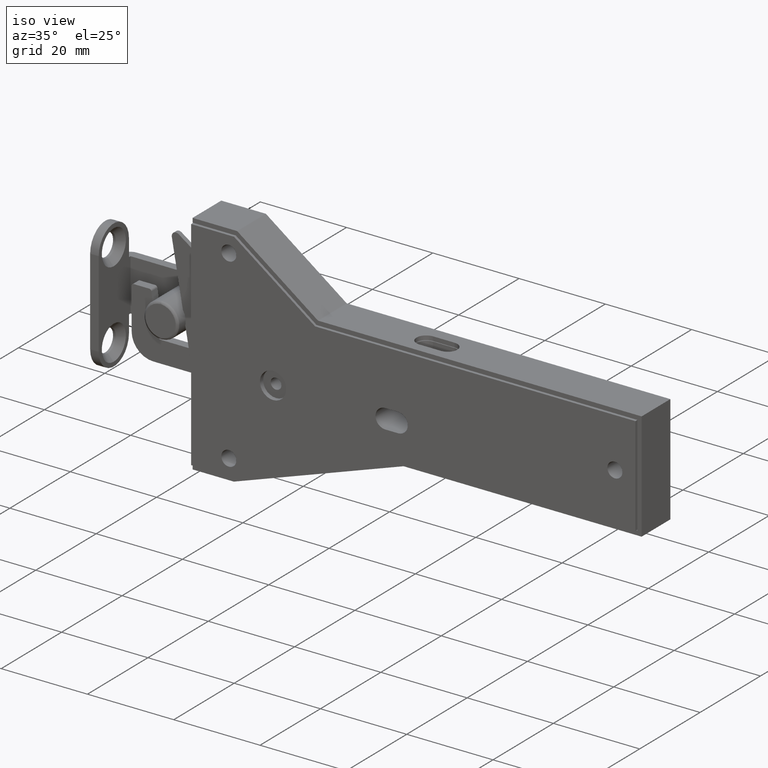
[diagram: clean part render]
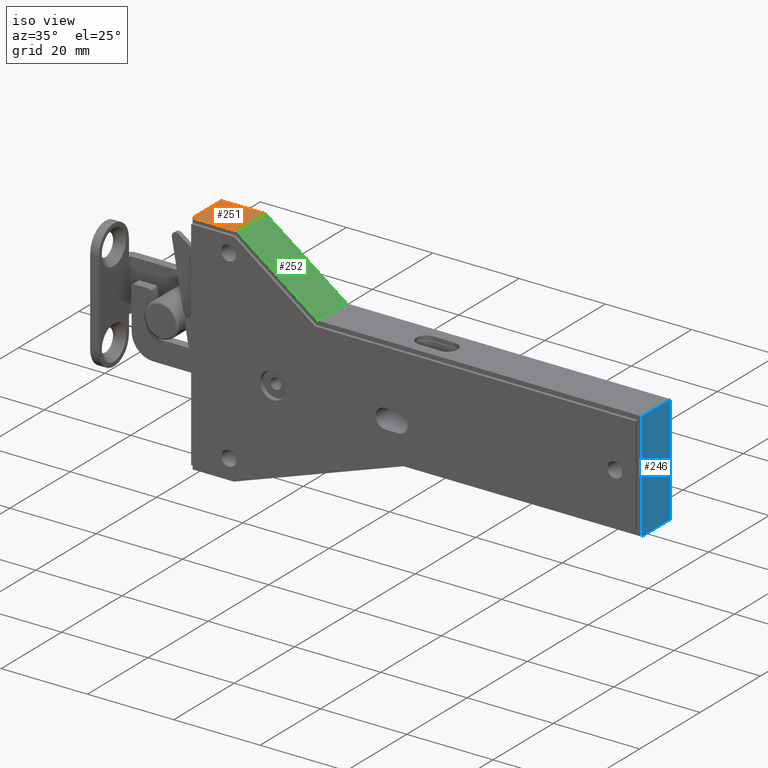
[diagram: same view with three faces highlighted in distinct colors, each labeled with its STEP entity id]
A machine part, iso view with three faces highlighted in distinct colors.
Their STEP definitions:

[orange] entity #251 — the highlighted planar face has unit normal (0, 0, 1).
#251=ADVANCED_FACE('',(#687),#686,.T.);
#686=PLANE('',#2325);
#687=FACE_OUTER_BOUND('',#2326,.T.);
#2322=CARTESIAN_POINT('',(-2.00338496318E+001,-1.04500000001E+001,2.98500000002E+001));
#2323=DIRECTION('',(2.31922971658E-012,-0.00000000000E+000,1.00000000000E+000));
#2324=DIRECTION('',(1.00000000000E+000,0.00000000000E+000,-2.31922971658E-012));
#2325=AXIS2_PLACEMENT_3D('',#2322,#2323,#2324);
#2326=EDGE_LOOP('',(#3312,#3313,#3314,#3315));
#3312=ORIENTED_EDGE('',*,*,#4121,.F.);
#3313=ORIENTED_EDGE('',*,*,#4204,.F.);
#3314=ORIENTED_EDGE('',*,*,#4205,.T.);
#3315=ORIENTED_EDGE('',*,*,#4202,.T.);
#4121=EDGE_CURVE('',#4722,#4729,#4730,.T.);
#4202=EDGE_CURVE('',#5271,#4729,#5272,.T.);
#4204=EDGE_CURVE('',#5284,#4722,#5285,.T.);
#4205=EDGE_CURVE('',#5284,#5271,#5291,.T.);
#4722=VERTEX_POINT('',#7840);
#4729=VERTEX_POINT('',#7844);
#4730=LINE('',#7845,#7846);
#5271=VERTEX_POINT('',#8167);
#5272=LINE('',#8168,#8169);
#5284=VERTEX_POINT('',#8174);
#5285=LINE('',#8175,#8176);
#5291=LINE('',#8178,#8179);
#7840=CARTESIAN_POINT('',(-8.66150368220E+000,-9.50000000005E+000,2.98500000002E+001));
#7844=CARTESIAN_POINT('',(-1.90000000000E+001,-9.50000000005E+000,2.98500000002E+001));
#7845=CARTESIAN_POINT('',(-8.66150368220E+000,-9.50000000005E+000,2.98500000002E+001));
#7846=VECTOR('',#7847,1.03384963178E+001);
#7847=DIRECTION('',(-1.00000000000E+000,0.00000000000E+000,2.31922166253E-012));
#8167=CARTESIAN_POINT('',(-1.90000000000E+001,2.01283434365E-010,2.98500000002E+001));
#8168=CARTESIAN_POINT('',(-1.90000000000E+001,2.01225702767E-010,2.98500000002E+001));
#8169=VECTOR('',#8170,9.50000000025E+000);
#8170=DIRECTION('',(0.00000000000E+000,-1.00000000000E+000,0.00000000000E+000));
#8174=CARTESIAN_POINT('',(-8.66150368220E+000,2.01283434365E-010,2.98500000002E+001));
#8175=CARTESIAN_POINT('',(-8.66150368220E+000,2.01225702767E-010,2.98500000002E+001));
#8176=VECTOR('',#8177,9.50000000025E+000);
#8177=DIRECTION('',(0.00000000000E+000,-1.00000000000E+000,0.00000000000E+000));
#8178=CARTESIAN_POINT('',(-8.66150368220E+000,2.01283434365E-010,2.98500000002E+001));
#8179=VECTOR('',#8180,1.03384963178E+001);
#8180=DIRECTION('',(-1.00000000000E+000,0.00000000000E+000,2.31922166253E-012));

[blue] entity #246 — the highlighted planar face has unit normal (1, 0, -0).
#246=ADVANCED_FACE('',(#637),#636,.T.);
#636=PLANE('',#2300);
#637=FACE_OUTER_BOUND('',#2301,.T.);
#2297=CARTESIAN_POINT('',(8.51000000015E+001,-1.04500000001E+001,1.86200000017E+001));
#2298=DIRECTION('',(1.00000000000E+000,0.00000000000E+000,-3.03934567073E-012));
#2299=DIRECTION('',(-3.03934567073E-012,0.00000000000E+000,-1.00000000000E+000));
#2300=AXIS2_PLACEMENT_3D('',#2297,#2298,#2299);
#2301=EDGE_LOOP('',(#3276,#3277,#3278,#3279));
#3276=ORIENTED_EDGE('',*,*,#4118,.F.);
#3277=ORIENTED_EDGE('',*,*,#4188,.F.);
#3278=ORIENTED_EDGE('',*,*,#4189,.T.);
#3279=ORIENTED_EDGE('',*,*,#4185,.T.);
#4118=EDGE_CURVE('',#4701,#4708,#4709,.T.);
#4185=EDGE_CURVE('',#5159,#4708,#5160,.T.);
#4188=EDGE_CURVE('',#5179,#4701,#5180,.T.);
#4189=EDGE_CURVE('',#5179,#5159,#5186,.T.);
#4701=VERTEX_POINT('',#7828);
#4708=VERTEX_POINT('',#7832);
#4709=LINE('',#7833,#7834);
#5159=VERTEX_POINT('',#8103);
#5160=LINE('',#8104,#8105);
#5179=VERTEX_POINT('',#8114);
#5180=LINE('',#8115,#8116);
#5186=LINE('',#8118,#8119);
#7828=CARTESIAN_POINT('',(8.51000000014E+001,-9.50000000005E+000,-9.10000000160E+000));
#7832=CARTESIAN_POINT('',(8.51000000014E+001,-9.50000000005E+000,1.61000000014E+001));
#7833=CARTESIAN_POINT('',(8.51000000014E+001,-9.50000000005E+000,-9.10000000160E+000));
#7834=VECTOR('',#7835,2.52000000030E+001);
#7835=DIRECTION('',(3.03954392484E-012,0.00000000000E+000,1.00000000000E+000));
#8103=CARTESIAN_POINT('',(8.51000000014E+001,2.01283434365E-010,1.61000000014E+001));
#8104=CARTESIAN_POINT('',(8.51000000014E+001,2.01225702767E-010,1.61000000014E+001));
#8105=VECTOR('',#8106,9.50000000025E+000);
#8106=DIRECTION('',(0.00000000000E+000,-1.00000000000E+000,0.00000000000E+000));
#8114=CARTESIAN_POINT('',(8.51000000014E+001,2.01283434365E-010,-9.10000000160E+000));
#8115=CARTESIAN_POINT('',(8.51000000014E+001,2.01225702767E-010,-9.10000000160E+000));
#8116=VECTOR('',#8117,9.50000000025E+000);
#8117=DIRECTION('',(0.00000000000E+000,-1.00000000000E+000,0.00000000000E+000));
#8118=CARTESIAN_POINT('',(8.51000000014E+001,2.01283434365E-010,-9.10000000160E+000));
#8119=VECTOR('',#8120,2.52000000030E+001);
#8120=DIRECTION('',(3.03954392484E-012,0.00000000000E+000,1.00000000000E+000));

[green] entity #252 — the highlighted planar face has unit normal (0.5916, 0, 0.8062).
#252=ADVANCED_FACE('',(#697),#696,.T.);
#696=PLANE('',#2330);
#697=FACE_OUTER_BOUND('',#2331,.T.);
#2327=CARTESIAN_POINT('',(-1.05354065518E+001,-1.04500000001E+001,3.12250000000E+001));
#2328=DIRECTION('',(5.91588744588E-001,-0.00000000000E+000,8.06239888170E-001));
#2329=DIRECTION('',(8.06239888170E-001,0.00000000000E+000,-5.91588744588E-001));
#2330=AXIS2_PLACEMENT_3D('',#2327,#2328,#2329);
#2331=EDGE_LOOP('',(#3316,#3317,#3318,#3319));
#3316=ORIENTED_EDGE('',*,*,#4120,.F.);
#3317=ORIENTED_EDGE('',*,*,#4187,.F.);
#3318=ORIENTED_EDGE('',*,*,#4206,.T.);
#3319=ORIENTED_EDGE('',*,*,#4204,.T.);
#4120=EDGE_CURVE('',#4715,#4722,#4723,.T.);
#4187=EDGE_CURVE('',#5166,#4715,#5173,.T.);
#4204=EDGE_CURVE('',#5284,#4722,#5285,.T.);
#4206=EDGE_CURVE('',#5166,#5284,#5297,.T.);
#4715=VERTEX_POINT('',#7836);
#4722=VERTEX_POINT('',#7840);
#4723=LINE('',#7841,#7842);
#5166=VERTEX_POINT('',#8107);
#5173=LINE('',#8111,#8112);
#5284=VERTEX_POINT('',#8174);
#5285=LINE('',#8175,#8176);
#5297=LINE('',#8181,#8182);
#7836=CARTESIAN_POINT('',(1.00775250141E+001,-9.50000000005E+000,1.61000000016E+001));
#7840=CARTESIAN_POINT('',(-8.66150368220E+000,-9.50000000005E+000,2.98500000002E+001));
#7841=CARTESIAN_POINT('',(1.00775250141E+001,-9.50000000005E+000,1.61000000016E+001));
#7842=VECTOR('',#7843,2.32424976378E+001);
#7843=DIRECTION('',(-8.06239888170E-001,0.00000000000E+000,5.91588744588E-001));
#8107=CARTESIAN_POINT('',(1.00775250141E+001,2.01283434365E-010,1.61000000016E+001));
#8111=CARTESIAN_POINT('',(1.00775250141E+001,2.01225702767E-010,1.61000000016E+001));
#8112=VECTOR('',#8113,9.50000000025E+000);
#8113=DIRECTION('',(0.00000000000E+000,-1.00000000000E+000,0.00000000000E+000));
#8174=CARTESIAN_POINT('',(-8.66150368220E+000,2.01283434365E-010,2.98500000002E+001));
#8175=CARTESIAN_POINT('',(-8.66150368220E+000,2.01225702767E-010,2.98500000002E+001));
#8176=VECTOR('',#8177,9.50000000025E+000);
#8177=DIRECTION('',(0.00000000000E+000,-1.00000000000E+000,0.00000000000E+000));
#8181=CARTESIAN_POINT('',(1.00775250141E+001,2.01283434365E-010,1.61000000016E+001));
#8182=VECTOR('',#8183,2.32424976378E+001);
#8183=DIRECTION('',(-8.06239888170E-001,0.00000000000E+000,5.91588744588E-001));